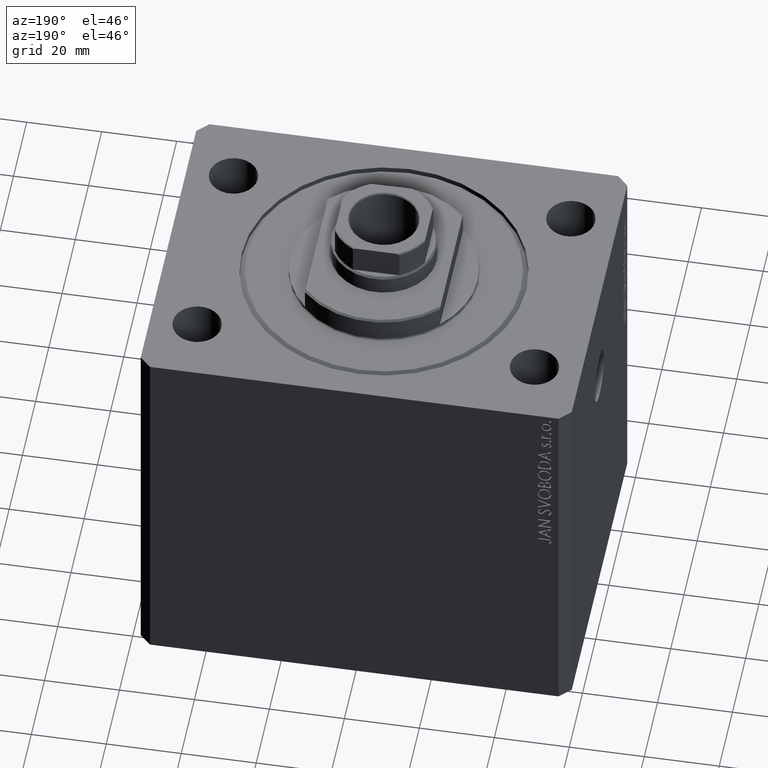
[diagram: clean part render]
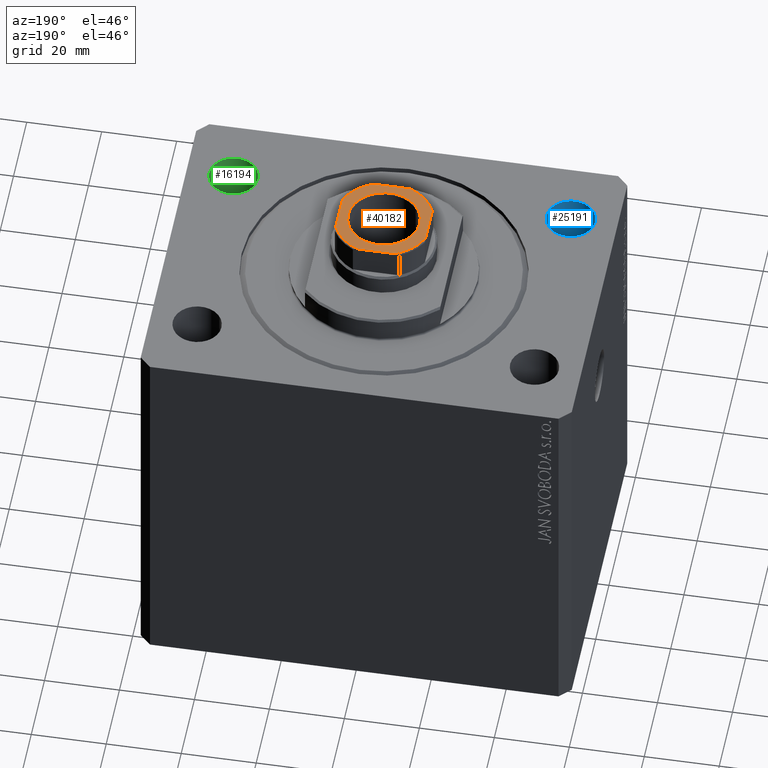
[diagram: same view with three faces highlighted in distinct colors, each labeled with its STEP entity id]
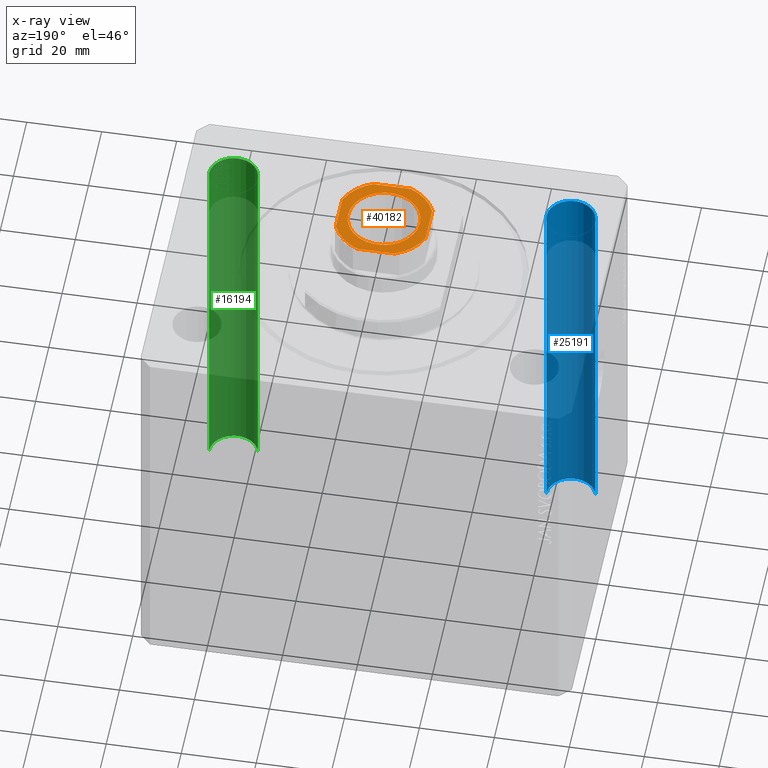
[diagram: x-ray of the same camera — body ghosted, the three highlighted faces saturated]
A machine part, auxiliary view with three faces highlighted in distinct colors.
The next image is the same camera in x-ray (body ghosted, the three faces saturated) — at least one of them is partly hidden behind the body in this view.
Their STEP definitions:

[orange] entity #40182 — the highlighted planar face has unit normal (0, 0, 1).
#4 = VERTEX_POINT ( 'NONE', #34585 ) ;
#259 = DIRECTION ( 'NONE',  ( -1.000000000000000000, -7.228014483236695816E-17, -0.000000000000000000 ) ) ;
#1707 = VECTOR ( 'NONE', #34340, 1000.000000000000000 ) ;
#2351 = CARTESIAN_POINT ( 'NONE',  ( 0.000000000000000000, 0.000000000000000000, 107.0000000000000142 ) ) ;
#2782 = DIRECTION ( 'NONE',  ( -0.000000000000000000, 0.000000000000000000, 1.000000000000000000 ) ) ;
#3489 = EDGE_CURVE ( 'NONE', #16015, #26303, #39031, .T. ) ;
#3677 = DIRECTION ( 'NONE',  ( -0.000000000000000000, 0.000000000000000000, 1.000000000000000000 ) ) ;
#4084 = ORIENTED_EDGE ( 'NONE', *, *, #35524, .T. ) ;
#4339 = DIRECTION ( 'NONE',  ( 7.228014483236695816E-17, -1.000000000000000000, 0.000000000000000000 ) ) ;
#4635 = VERTEX_POINT ( 'NONE', #5081 ) ;
#5081 = CARTESIAN_POINT ( 'NONE',  ( -4.999999999999992895, -12.00000000000000178, 107.0000000000000142 ) ) ;
#6094 = CARTESIAN_POINT ( 'NONE',  ( 0.000000000000000000, 0.000000000000000000, 107.0000000000000142 ) ) ;
#6311 = EDGE_CURVE ( 'NONE', #4635, #17027, #41773, .T. ) ;
#6330 = AXIS2_PLACEMENT_3D ( 'NONE', #33718, #16995, #27400 ) ;
#6380 = FACE_BOUND ( 'NONE', #29297, .T. ) ;
#6552 = CARTESIAN_POINT ( 'NONE',  ( 5.000000000000002665, 12.00000000000000000, 107.0000000000000142 ) ) ;
#7047 = VERTEX_POINT ( 'NONE', #32438 ) ;
#7448 = VERTEX_POINT ( 'NONE', #6552 ) ;
#8475 = EDGE_CURVE ( 'NONE', #17088, #4635, #36300, .T. ) ;
#8976 = EDGE_CURVE ( 'NONE', #17029, #27722, #35563, .T. ) ;
#9168 = DIRECTION ( 'NONE',  ( 1.000000000000000000, 0.000000000000000000, 0.000000000000000000 ) ) ;
#9390 = EDGE_CURVE ( 'NONE', #4, #7448, #43539, .T. ) ;
#9595 = CARTESIAN_POINT ( 'NONE',  ( 0.000000000000000000, 0.000000000000000000, 107.0000000000000142 ) ) ;
#9598 = EDGE_LOOP ( 'NONE', ( #14903, #38423, #13316, #23451, #13881, #31253, #4084, #24900 ) ) ;
#10103 = ORIENTED_EDGE ( 'NONE', *, *, #8976, .T. ) ;
#11773 = LINE ( 'NONE', #25557, #18310 ) ;
#13316 = ORIENTED_EDGE ( 'NONE', *, *, #6311, .T. ) ;
#13571 = CARTESIAN_POINT ( 'NONE',  ( 12.00000000000000000, 12.00000000000000000, 107.0000000000000142 ) ) ;
#13704 = AXIS2_PLACEMENT_3D ( 'NONE', #2351, #2782, #33493 ) ;
#13881 = ORIENTED_EDGE ( 'NONE', *, *, #29893, .T. ) ;
#14903 = ORIENTED_EDGE ( 'NONE', *, *, #31667, .T. ) ;
#15267 = AXIS2_PLACEMENT_3D ( 'NONE', #33549, #39646, #26363 ) ;
#16015 = VERTEX_POINT ( 'NONE', #22106 ) ;
#16995 = DIRECTION ( 'NONE',  ( 0.000000000000000000, -0.000000000000000000, -1.000000000000000000 ) ) ;
#17027 = VERTEX_POINT ( 'NONE', #34343 ) ;
#17029 = VERTEX_POINT ( 'NONE', #23315 ) ;
#17088 = VERTEX_POINT ( 'NONE', #23536 ) ;
#18310 = VECTOR ( 'NONE', #4339, 1000.000000000000000 ) ;
#20805 = CARTESIAN_POINT ( 'NONE',  ( -11.99999999999999645, -12.00000000000000178, 107.0000000000000142 ) ) ;
#21512 = CARTESIAN_POINT ( 'NONE',  ( 0.000000000000000000, 0.000000000000000000, 107.0000000000000142 ) ) ;
#22106 = CARTESIAN_POINT ( 'NONE',  ( -5.000000000000001776, 11.99999999999999822, 107.0000000000000142 ) ) ;
#23124 = CARTESIAN_POINT ( 'NONE',  ( -9.549999999999975842, 1.169537693185719403E-15, 107.0000000000000142 ) ) ;
#23315 = CARTESIAN_POINT ( 'NONE',  ( 9.549999999999975842, 0.000000000000000000, 107.0000000000000142 ) ) ;
#23451 = ORIENTED_EDGE ( 'NONE', *, *, #24591, .T. ) ;
#23536 = CARTESIAN_POINT ( 'NONE',  ( -11.99999999999999822, -5.000000000000001776, 107.0000000000000142 ) ) ;
#24591 = EDGE_CURVE ( 'NONE', #17027, #7047, #27849, .T. ) ;
#24900 = ORIENTED_EDGE ( 'NONE', *, *, #3489, .T. ) ;
#25102 = CIRCLE ( 'NONE', #6330, 9.549999999999975842 ) ;
#25557 = CARTESIAN_POINT ( 'NONE',  ( -11.99999999999999822, 11.99999999999999822, 107.0000000000000142 ) ) ;
#26303 = VERTEX_POINT ( 'NONE', #34351 ) ;
#26363 = DIRECTION ( 'NONE',  ( 1.000000000000000000, 0.000000000000000000, 0.000000000000000000 ) ) ;
#27352 = CARTESIAN_POINT ( 'NONE',  ( -11.99999999999999822, 11.99999999999999822, 107.0000000000000142 ) ) ;
#27400 = DIRECTION ( 'NONE',  ( 1.000000000000000000, 0.000000000000000000, 0.000000000000000000 ) ) ;
#27722 = VERTEX_POINT ( 'NONE', #23124 ) ;
#27849 = CIRCLE ( 'NONE', #42221, 13.00000000000000000 ) ;
#29297 = EDGE_LOOP ( 'NONE', ( #10103, #29675 ) ) ;
#29675 = ORIENTED_EDGE ( 'NONE', *, *, #34551, .T. ) ;
#29893 = EDGE_CURVE ( 'NONE', #7047, #4, #30733, .T. ) ;
#30733 = LINE ( 'NONE', #13571, #1707 ) ;
#31253 = ORIENTED_EDGE ( 'NONE', *, *, #9390, .T. ) ;
#31667 = EDGE_CURVE ( 'NONE', #26303, #17088, #11773, .T. ) ;
#32019 = AXIS2_PLACEMENT_3D ( 'NONE', #9595, #37342, #9168 ) ;
#32438 = CARTESIAN_POINT ( 'NONE',  ( 12.00000000000000178, -4.999999999999990230, 107.0000000000000142 ) ) ;
#33493 = DIRECTION ( 'NONE',  ( 1.000000000000000000, 0.000000000000000000, 0.000000000000000000 ) ) ;
#33549 = CARTESIAN_POINT ( 'NONE',  ( 0.000000000000000000, 0.000000000000000000, 107.0000000000000142 ) ) ;
#33684 = DIRECTION ( 'NONE',  ( 1.000000000000000000, 0.000000000000000000, 0.000000000000000000 ) ) ;
#33696 = PLANE ( 'NONE',  #13704 ) ;
#33718 = CARTESIAN_POINT ( 'NONE',  ( 0.000000000000000000, 0.000000000000000000, 107.0000000000000142 ) ) ;
#33830 = DIRECTION ( 'NONE',  ( -0.000000000000000000, 0.000000000000000000, 1.000000000000000000 ) ) ;
#34050 = DIRECTION ( 'NONE',  ( 1.000000000000000000, 0.000000000000000000, 0.000000000000000000 ) ) ;
#34340 = DIRECTION ( 'NONE',  ( -1.445602896647339163E-16, 1.000000000000000000, -0.000000000000000000 ) ) ;
#34343 = CARTESIAN_POINT ( 'NONE',  ( 4.999999999999993783, -12.00000000000000178, 107.0000000000000142 ) ) ;
#34346 = CARTESIAN_POINT ( 'NONE',  ( 0.000000000000000000, 0.000000000000000000, 107.0000000000000142 ) ) ;
#34351 = CARTESIAN_POINT ( 'NONE',  ( -11.99999999999999822, 5.000000000000000888, 107.0000000000000142 ) ) ;
#34455 = VECTOR ( 'NONE', #259, 1000.000000000000000 ) ;
#34551 = EDGE_CURVE ( 'NONE', #27722, #17029, #25102, .T. ) ;
#34585 = CARTESIAN_POINT ( 'NONE',  ( 12.00000000000000178, 4.999999999999994671, 107.0000000000000142 ) ) ;
#35524 = EDGE_CURVE ( 'NONE', #7448, #16015, #43662, .T. ) ;
#35563 = CIRCLE ( 'NONE', #42754, 9.549999999999975842 ) ;
#36300 = CIRCLE ( 'NONE', #43495, 13.00000000000000000 ) ;
#37342 = DIRECTION ( 'NONE',  ( -0.000000000000000000, 0.000000000000000000, 1.000000000000000000 ) ) ;
#38203 = DIRECTION ( 'NONE',  ( 1.000000000000000000, 0.000000000000000000, 0.000000000000000000 ) ) ;
#38423 = ORIENTED_EDGE ( 'NONE', *, *, #8475, .T. ) ;
#39031 = CIRCLE ( 'NONE', #15267, 13.00000000000000000 ) ;
#39646 = DIRECTION ( 'NONE',  ( -0.000000000000000000, 0.000000000000000000, 1.000000000000000000 ) ) ;
#40182 = ADVANCED_FACE ( 'NONE', ( #6380, #40682 ), #33696, .T. ) ;
#40543 = VECTOR ( 'NONE', #41325, 1000.000000000000000 ) ;
#40682 = FACE_OUTER_BOUND ( 'NONE', #9598, .T. ) ;
#41325 = DIRECTION ( 'NONE',  ( 1.000000000000000000, 7.228014483236695816E-17, 0.000000000000000000 ) ) ;
#41773 = LINE ( 'NONE', #20805, #40543 ) ;
#42221 = AXIS2_PLACEMENT_3D ( 'NONE', #6094, #33830, #34050 ) ;
#42754 = AXIS2_PLACEMENT_3D ( 'NONE', #34346, #44476, #33684 ) ;
#43495 = AXIS2_PLACEMENT_3D ( 'NONE', #21512, #3677, #38203 ) ;
#43539 = CIRCLE ( 'NONE', #32019, 13.00000000000000000 ) ;
#43662 = LINE ( 'NONE', #27352, #34455 ) ;
#44476 = DIRECTION ( 'NONE',  ( 0.000000000000000000, -0.000000000000000000, -1.000000000000000000 ) ) ;

[blue] entity #25191 — the highlighted cylindrical surface (edge-blend (fillet) strip) has radius 6.5 mm, axis along (0, 0, 1).
#353 = VERTEX_POINT ( 'NONE', #27401 ) ;
#2535 = EDGE_LOOP ( 'NONE', ( #34720, #42675, #3000, #9615 ) ) ;
#3000 = ORIENTED_EDGE ( 'NONE', *, *, #20880, .T. ) ;
#4830 = VERTEX_POINT ( 'NONE', #40696 ) ;
#4891 = VECTOR ( 'NONE', #29146, 1000.000000000000000 ) ;
#5159 = DIRECTION ( 'NONE',  ( -0.000000000000000000, -0.000000000000000000, -1.000000000000000000 ) ) ;
#6190 = AXIS2_PLACEMENT_3D ( 'NONE', #7191, #21186, #17560 ) ;
#6859 = DIRECTION ( 'NONE',  ( 1.000000000000000000, 0.000000000000000000, 0.000000000000000000 ) ) ;
#7191 = CARTESIAN_POINT ( 'NONE',  ( -44.99999999999998579, -27.50000000000000355, 0.000000000000000000 ) ) ;
#9615 = ORIENTED_EDGE ( 'NONE', *, *, #33822, .F. ) ;
#9663 = LINE ( 'NONE', #30860, #14848 ) ;
#12465 = EDGE_CURVE ( 'NONE', #4830, #33987, #24140, .T. ) ;
#13619 = FACE_OUTER_BOUND ( 'NONE', #2535, .T. ) ;
#14708 = LINE ( 'NONE', #25992, #4891 ) ;
#14848 = VECTOR ( 'NONE', #40361, 1000.000000000000000 ) ;
#17560 = DIRECTION ( 'NONE',  ( 1.000000000000000000, 0.000000000000000000, 0.000000000000000000 ) ) ;
#18455 = EDGE_CURVE ( 'NONE', #33987, #29444, #9663, .T. ) ;
#20880 = EDGE_CURVE ( 'NONE', #29444, #353, #25677, .T. ) ;
#21186 = DIRECTION ( 'NONE',  ( 0.000000000000000000, 0.000000000000000000, 1.000000000000000000 ) ) ;
#22097 = CARTESIAN_POINT ( 'NONE',  ( -44.99999999999998579, -27.50000000000000355, -105.0000000000000000 ) ) ;
#24140 = CIRCLE ( 'NONE', #31334, 6.499999999999999112 ) ;
#25191 = ADVANCED_FACE ( 'NONE', ( #13619 ), #27407, .F. ) ;
#25677 = CIRCLE ( 'NONE', #6190, 6.499999999999999112 ) ;
#25692 = AXIS2_PLACEMENT_3D ( 'NONE', #41138, #37773, #6859 ) ;
#25992 = CARTESIAN_POINT ( 'NONE',  ( -38.49999999999998579, -27.50000000000000355, -123.3847763108502278 ) ) ;
#27401 = CARTESIAN_POINT ( 'NONE',  ( -38.49999999999998579, -27.50000000000000355, 0.000000000000000000 ) ) ;
#27407 = CYLINDRICAL_SURFACE ( 'NONE', #25692, 6.499999999999999112 ) ;
#29146 = DIRECTION ( 'NONE',  ( -0.000000000000000000, -0.000000000000000000, 1.000000000000000000 ) ) ;
#29444 = VERTEX_POINT ( 'NONE', #43931 ) ;
#30860 = CARTESIAN_POINT ( 'NONE',  ( -51.49999999999998579, -27.50000000000000355, -123.3847763108502278 ) ) ;
#31334 = AXIS2_PLACEMENT_3D ( 'NONE', #22097, #5159, #32699 ) ;
#32699 = DIRECTION ( 'NONE',  ( 1.000000000000000000, 0.000000000000000000, 0.000000000000000000 ) ) ;
#33822 = EDGE_CURVE ( 'NONE', #4830, #353, #14708, .T. ) ;
#33987 = VERTEX_POINT ( 'NONE', #37658 ) ;
#34720 = ORIENTED_EDGE ( 'NONE', *, *, #12465, .T. ) ;
#37658 = CARTESIAN_POINT ( 'NONE',  ( -51.49999999999998579, -27.50000000000000355, -105.0000000000000000 ) ) ;
#37773 = DIRECTION ( 'NONE',  ( -0.000000000000000000, -0.000000000000000000, 1.000000000000000000 ) ) ;
#40361 = DIRECTION ( 'NONE',  ( -0.000000000000000000, -0.000000000000000000, 1.000000000000000000 ) ) ;
#40696 = CARTESIAN_POINT ( 'NONE',  ( -38.49999999999998579, -27.50000000000000355, -105.0000000000000000 ) ) ;
#41138 = CARTESIAN_POINT ( 'NONE',  ( -44.99999999999998579, -27.50000000000000355, -123.3847763108502278 ) ) ;
#42675 = ORIENTED_EDGE ( 'NONE', *, *, #18455, .T. ) ;
#43931 = CARTESIAN_POINT ( 'NONE',  ( -51.49999999999998579, -27.50000000000000355, 0.000000000000000000 ) ) ;

[green] entity #16194 — the highlighted cylindrical surface (edge-blend (fillet) strip) has radius 6.5 mm, axis along (0, 0, 1).
#581 = DIRECTION ( 'NONE',  ( -0.000000000000000000, -0.000000000000000000, 1.000000000000000000 ) ) ;
#1915 = DIRECTION ( 'NONE',  ( -0.000000000000000000, -0.000000000000000000, -1.000000000000000000 ) ) ;
#2695 = EDGE_CURVE ( 'NONE', #33858, #17366, #20988, .T. ) ;
#3759 = CARTESIAN_POINT ( 'NONE',  ( 38.49999999999998579, -27.50000000000000355, 0.000000000000000000 ) ) ;
#3836 = CARTESIAN_POINT ( 'NONE',  ( 38.49999999999998579, -27.50000000000000355, -123.3847763108502278 ) ) ;
#7439 = DIRECTION ( 'NONE',  ( -0.000000000000000000, -0.000000000000000000, 1.000000000000000000 ) ) ;
#9108 = AXIS2_PLACEMENT_3D ( 'NONE', #17674, #35512, #13844 ) ;
#9227 = ORIENTED_EDGE ( 'NONE', *, *, #2695, .T. ) ;
#12456 = VECTOR ( 'NONE', #581, 1000.000000000000000 ) ;
#13201 = EDGE_LOOP ( 'NONE', ( #9227, #17495, #32231, #41778 ) ) ;
#13844 = DIRECTION ( 'NONE',  ( 1.000000000000000000, 0.000000000000000000, 0.000000000000000000 ) ) ;
#15138 = VECTOR ( 'NONE', #7439, 1000.000000000000000 ) ;
#16194 = ADVANCED_FACE ( 'NONE', ( #27477 ), #31306, .F. ) ;
#17349 = CARTESIAN_POINT ( 'NONE',  ( 38.49999999999998579, -27.50000000000000355, -105.0000000000000000 ) ) ;
#17366 = VERTEX_POINT ( 'NONE', #17349 ) ;
#17495 = ORIENTED_EDGE ( 'NONE', *, *, #44373, .T. ) ;
#17674 = CARTESIAN_POINT ( 'NONE',  ( 44.99999999999998579, -27.50000000000000355, 0.000000000000000000 ) ) ;
#17723 = LINE ( 'NONE', #21795, #12456 ) ;
#18443 = CIRCLE ( 'NONE', #9108, 6.499999999999999112 ) ;
#19716 = VERTEX_POINT ( 'NONE', #42699 ) ;
#20241 = DIRECTION ( 'NONE',  ( 1.000000000000000000, 0.000000000000000000, 0.000000000000000000 ) ) ;
#20343 = EDGE_CURVE ( 'NONE', #25785, #19716, #18443, .T. ) ;
#20988 = CIRCLE ( 'NONE', #36146, 6.499999999999999112 ) ;
#21795 = CARTESIAN_POINT ( 'NONE',  ( 51.49999999999998579, -27.50000000000000355, -123.3847763108502278 ) ) ;
#22679 = DIRECTION ( 'NONE',  ( 1.000000000000000000, 0.000000000000000000, 0.000000000000000000 ) ) ;
#24313 = DIRECTION ( 'NONE',  ( -0.000000000000000000, -0.000000000000000000, 1.000000000000000000 ) ) ;
#25785 = VERTEX_POINT ( 'NONE', #3759 ) ;
#27477 = FACE_OUTER_BOUND ( 'NONE', #13201, .T. ) ;
#28379 = EDGE_CURVE ( 'NONE', #33858, #19716, #17723, .T. ) ;
#31306 = CYLINDRICAL_SURFACE ( 'NONE', #38540, 6.499999999999999112 ) ;
#32231 = ORIENTED_EDGE ( 'NONE', *, *, #20343, .T. ) ;
#32840 = CARTESIAN_POINT ( 'NONE',  ( 44.99999999999998579, -27.50000000000000355, -105.0000000000000000 ) ) ;
#32976 = CARTESIAN_POINT ( 'NONE',  ( 51.49999999999998579, -27.50000000000000355, -105.0000000000000000 ) ) ;
#33858 = VERTEX_POINT ( 'NONE', #32976 ) ;
#34072 = LINE ( 'NONE', #3836, #15138 ) ;
#35512 = DIRECTION ( 'NONE',  ( 0.000000000000000000, 0.000000000000000000, 1.000000000000000000 ) ) ;
#36146 = AXIS2_PLACEMENT_3D ( 'NONE', #32840, #1915, #22679 ) ;
#38540 = AXIS2_PLACEMENT_3D ( 'NONE', #41438, #24313, #20241 ) ;
#41438 = CARTESIAN_POINT ( 'NONE',  ( 44.99999999999998579, -27.50000000000000355, -123.3847763108502278 ) ) ;
#41778 = ORIENTED_EDGE ( 'NONE', *, *, #28379, .F. ) ;
#42699 = CARTESIAN_POINT ( 'NONE',  ( 51.49999999999998579, -27.50000000000000355, 0.000000000000000000 ) ) ;
#44373 = EDGE_CURVE ( 'NONE', #17366, #25785, #34072, .T. ) ;